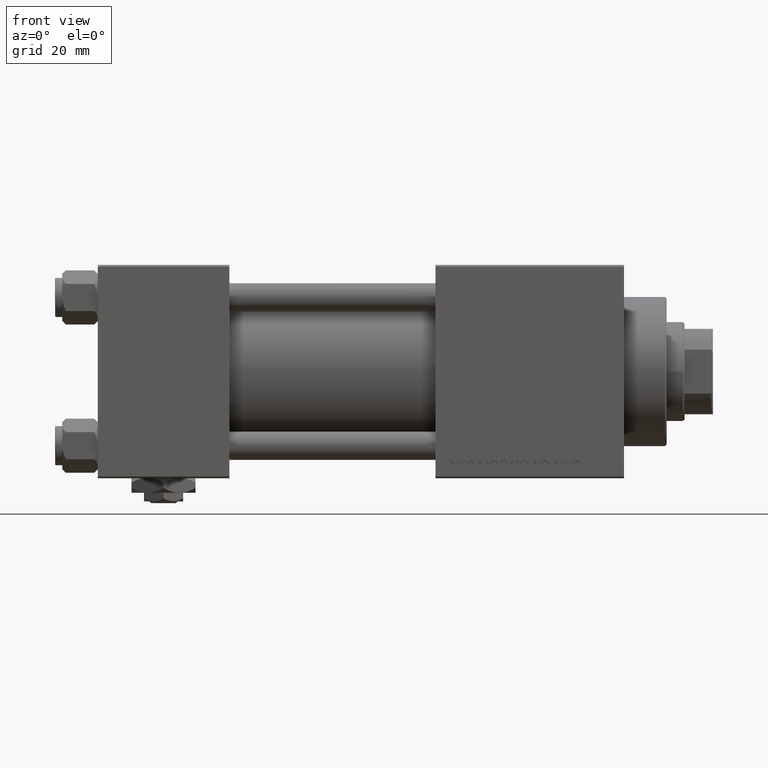
[diagram: clean part render]
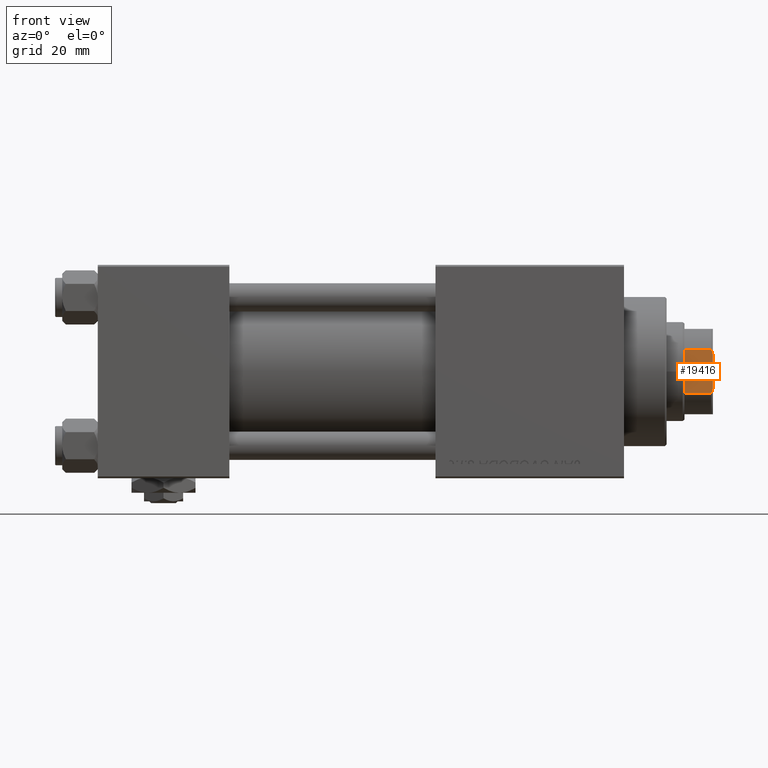
[diagram: same view with one face highlighted and labeled with its STEP entity id]
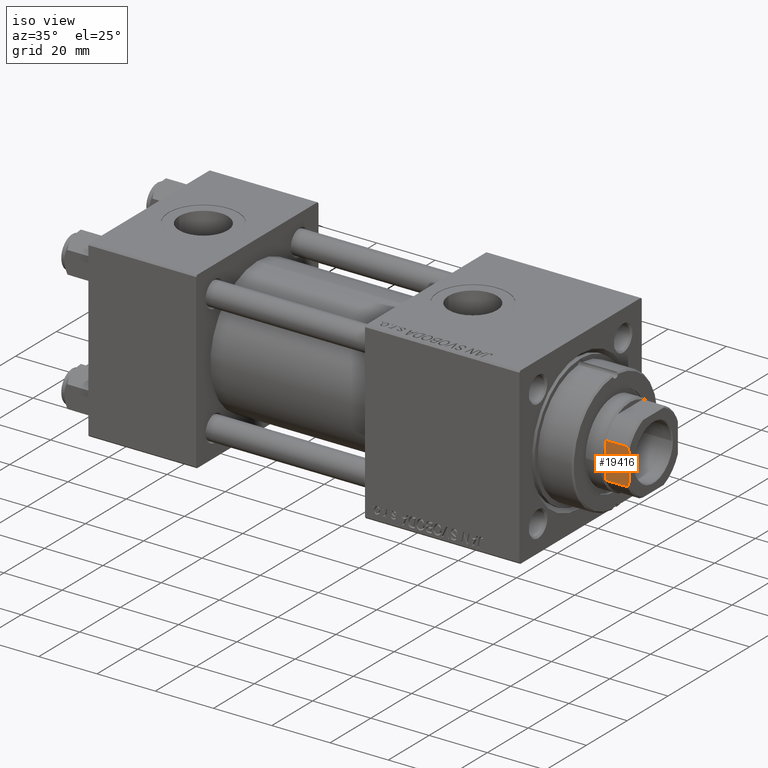
[diagram: same view with one face highlighted and labeled with its STEP entity id]
A machine part, front view. The second image highlights one B-rep face of the part: STEP entity #19416.
A second angle (iso view) of the same face is appended — the face is thin or edge-on in the first view.
In plain terms, the highlighted planar face has unit normal (0, 1, 0).
Its self-contained STEP definition (entity closure, byte-faithful):
#168 = LINE ( 'NONE', #20228, #15776 ) ;
#3459 = DIRECTION ( 'NONE',  ( 2.891205793294678326E-16, -1.000000000000000000, 0.000000000000000000 ) ) ;
#3623 = DIRECTION ( 'NONE',  ( -2.891205793294678326E-16, 1.000000000000000000, -0.000000000000000000 ) ) ;
#4424 = CARTESIAN_POINT ( 'NONE',  ( 11.99999999999999645, 6.184658438426496652, -0.001000000000001000089 ) ) ;
#5042 = CARTESIAN_POINT ( 'NONE',  ( 12.00000000000000178, -5.000000000000056843, 136.0000000000000000 ) ) ;
#5390 = VERTEX_POINT ( 'NONE', #16474 ) ;
#5968 = ORIENTED_EDGE ( 'NONE', *, *, #11130, .T. ) ;
#6304 = VECTOR ( 'NONE', #31652, 1000.000000000000000 ) ;
#6903 = CARTESIAN_POINT ( 'NONE',  ( 11.99999999999999645, 6.184658438426496652, 128.0000000000000853 ) ) ;
#7115 = VECTOR ( 'NONE', #27600, 1000.000000000000000 ) ;
#7860 = LINE ( 'NONE', #4424, #17212 ) ;
#9273 = AXIS2_PLACEMENT_3D ( 'NONE', #51731, #11354, #3459 ) ;
#10327 = CARTESIAN_POINT ( 'NONE',  ( 11.99999999999999645, 5.794808544282254559, 135.6785991435214385 ) ) ;
#11130 = EDGE_CURVE ( 'NONE', #50385, #28658, #28475, .T. ) ;
#11354 = DIRECTION ( 'NONE',  ( -1.000000000000000000, -2.891205793294678326E-16, 0.000000000000000000 ) ) ;
#12107 = VERTEX_POINT ( 'NONE', #31682 ) ;
#12331 = DIRECTION ( 'NONE',  ( -0.000000000000000000, -0.000000000000000000, 1.000000000000000000 ) ) ;
#13529 = CARTESIAN_POINT ( 'NONE',  ( 11.99999999999999822, 5.400255697127821719, 135.8460555011047006 ) ) ;
#13981 = CARTESIAN_POINT ( 'NONE',  ( 12.00000000000000178, -5.400255697127827936, 135.8460555011047006 ) ) ;
#14832 = CARTESIAN_POINT ( 'NONE',  ( 11.99999999999999467, -6.184658438426501981, 135.5000000000000284 ) ) ;
#15776 = VECTOR ( 'NONE', #3623, 1000.000000000000000 ) ;
#16474 = CARTESIAN_POINT ( 'NONE',  ( 11.99999999999999467, -6.184658438426501981, 128.0000000000000853 ) ) ;
#16624 = PLANE ( 'NONE',  #9273 ) ;
#17212 = VECTOR ( 'NONE', #12331, 1000.000000000000000 ) ;
#19239 = ORIENTED_EDGE ( 'NONE', *, *, #29944, .T. ) ;
#19416 = ADVANCED_FACE ( 'NONE', ( #48039 ), #16624, .F. ) ;
#20228 = CARTESIAN_POINT ( 'NONE',  ( 11.99999999999999645, 11.99999999999999645, 136.0000000000000000 ) ) ;
#20707 = EDGE_CURVE ( 'NONE', #12107, #45414, #42051, .T. ) ;
#21128 = CARTESIAN_POINT ( 'NONE',  ( 11.99999999999999467, -6.184658438426501981, 135.5000000000000284 ) ) ;
#21701 = CARTESIAN_POINT ( 'NONE',  ( 11.99999999999999645, 6.184658438426496652, 135.5000000000000284 ) ) ;
#23898 = LINE ( 'NONE', #24153, #7115 ) ;
#23994 = ORIENTED_EDGE ( 'NONE', *, *, #45002, .F. ) ;
#24153 = CARTESIAN_POINT ( 'NONE',  ( 11.99999999999999645, 11.99999999999999645, 128.0000000000000000 ) ) ;
#24332 = CARTESIAN_POINT ( 'NONE',  ( 11.99999999999999822, 5.000000000000037303, 136.0000000000000000 ) ) ;
#26439 = CARTESIAN_POINT ( 'NONE',  ( 11.99999999999999822, 5.000000000000037303, 136.0000000000000000 ) ) ;
#26907 = ORIENTED_EDGE ( 'NONE', *, *, #33068, .T. ) ;
#27600 = DIRECTION ( 'NONE',  ( -2.891205793294678326E-16, 1.000000000000000000, -0.000000000000000000 ) ) ;
#27814 = VERTEX_POINT ( 'NONE', #6903 ) ;
#28475 = B_SPLINE_CURVE_WITH_KNOTS ( 'NONE', 3,
 ( #5042, #13981, #41182, #21128 ),
 .UNSPECIFIED., .F., .F.,
 ( 4, 4 ),
 ( 8.673617379884035472E-19, 0.001285852097146073176 ),
 .UNSPECIFIED. ) ;
#28658 = VERTEX_POINT ( 'NONE', #14832 ) ;
#28744 = CARTESIAN_POINT ( 'NONE',  ( 12.00000000000000178, -5.000000000000056843, 136.0000000000000000 ) ) ;
#29944 = EDGE_CURVE ( 'NONE', #5390, #27814, #23898, .T. ) ;
#31652 = DIRECTION ( 'NONE',  ( -0.000000000000000000, -0.000000000000000000, 1.000000000000000000 ) ) ;
#31682 = CARTESIAN_POINT ( 'NONE',  ( 11.99999999999999645, 6.184658438426496652, 135.5000000000000284 ) ) ;
#32859 = ORIENTED_EDGE ( 'NONE', *, *, #20707, .T. ) ;
#33068 = EDGE_CURVE ( 'NONE', #27814, #12107, #7860, .T. ) ;
#33971 = EDGE_CURVE ( 'NONE', #5390, #28658, #46921, .T. ) ;
#35333 = CARTESIAN_POINT ( 'NONE',  ( 11.99999999999999467, -6.184658438426501981, -0.001000000000001000089 ) ) ;
#41182 = CARTESIAN_POINT ( 'NONE',  ( 12.00000000000000178, -5.794808544282264329, 135.6785991435214385 ) ) ;
#42051 = B_SPLINE_CURVE_WITH_KNOTS ( 'NONE', 3,
 ( #21701, #10327, #13529, #26439 ),
 .UNSPECIFIED., .F., .F.,
 ( 4, 4 ),
 ( 0.000000000000000000, 0.001285852097146085102 ),
 .UNSPECIFIED. ) ;
#45002 = EDGE_CURVE ( 'NONE', #50385, #45414, #168, .T. ) ;
#45414 = VERTEX_POINT ( 'NONE', #24332 ) ;
#46921 = LINE ( 'NONE', #35333, #6304 ) ;
#47041 = ORIENTED_EDGE ( 'NONE', *, *, #33971, .F. ) ;
#48039 = FACE_OUTER_BOUND ( 'NONE', #48225, .T. ) ;
#48225 = EDGE_LOOP ( 'NONE', ( #26907, #32859, #23994, #5968, #47041, #19239 ) ) ;
#50385 = VERTEX_POINT ( 'NONE', #28744 ) ;
#51731 = CARTESIAN_POINT ( 'NONE',  ( 11.99999999999999645, 11.99999999999999645, 136.0000000000000000 ) ) ;